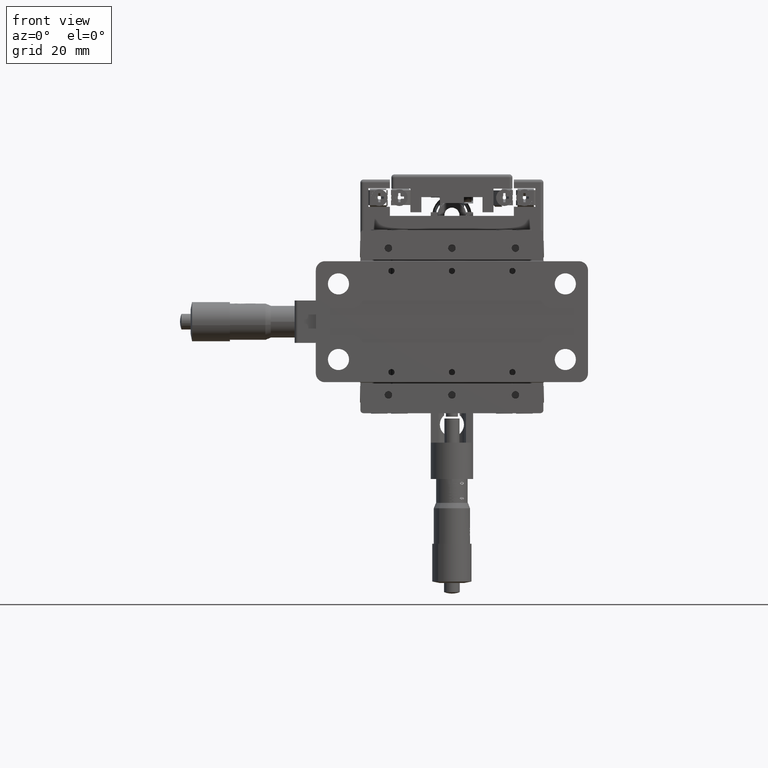
[diagram: clean part render]
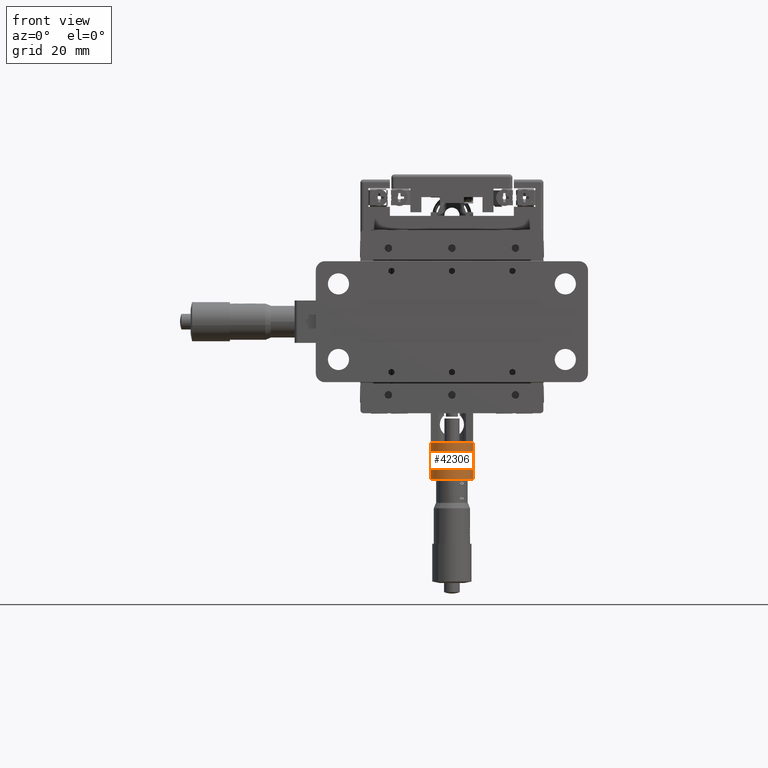
[diagram: same view with one face highlighted and labeled with its STEP entity id]
A machine part, front view. The second image highlights one B-rep face of the part: STEP entity #42306.
In plain terms, the highlighted cylindrical surface (edge-blend (fillet) strip) has radius 7 mm, axis along (0, 0, 1).
Its self-contained STEP definition (entity closure, byte-faithful):
#6 = VERTEX_POINT ( 'NONE', #25283 ) ;
#3027 = DIRECTION ( 'NONE',  ( 1.058181320345852200E-014, 3.944304526105059000E-031, 1.000000000000000000 ) ) ;
#3323 = DIRECTION ( 'NONE',  ( -1.000000000000000000, 0.0000000000000000000, 1.090397613471135800E-014 ) ) ;
#7791 = VERTEX_POINT ( 'NONE', #55955 ) ;
#9155 = CARTESIAN_POINT ( 'NONE',  ( -5.504021574391465400E-013, 11.79999999999989900, -51.99999999999808900 ) ) ;
#12217 = CYLINDRICAL_SURFACE ( 'NONE', #78967, 7.000000000000000000 ) ;
#13387 = LINE ( 'NONE', #70168, #65817 ) ;
#14746 = VERTEX_POINT ( 'NONE', #76812 ) ;
#16015 = DIRECTION ( 'NONE',  ( 1.000000000000000000, 0.0000000000000000000, -1.090397613471135800E-014 ) ) ;
#19046 = AXIS2_PLACEMENT_3D ( 'NONE', #71416, #30445, #78300 ) ;
#20719 = FACE_OUTER_BOUND ( 'NONE', #70645, .T. ) ;
#21346 = CARTESIAN_POINT ( 'NONE',  ( 6.999999999999450200, 11.79999999999989900, -51.99999999999816000 ) ) ;
#23629 = VECTOR ( 'NONE', #25029, 1000.000000000000000 ) ;
#24718 = CARTESIAN_POINT ( 'NONE',  ( 6.999999999999450200, 11.79999999999989900, -51.99999999999816000 ) ) ;
#25029 = DIRECTION ( 'NONE',  ( 1.058181320345852200E-014, 3.944304526105059000E-031, 1.000000000000000000 ) ) ;
#25283 = CARTESIAN_POINT ( 'NONE',  ( 6.999999999999578100, 11.79999999999989400, -39.99999999999816000 ) ) ;
#28270 = ORIENTED_EDGE ( 'NONE', *, *, #48410, .T. ) ;
#30445 = DIRECTION ( 'NONE',  ( 1.058181320345852200E-014, 3.944304526105059000E-031, 1.000000000000000000 ) ) ;
#42306 = ADVANCED_FACE ( 'NONE', ( #20719 ), #12217, .T. ) ;
#43599 = ORIENTED_EDGE ( 'NONE', *, *, #79466, .F. ) ;
#45115 = CIRCLE ( 'NONE', #55215, 7.000000000000000000 ) ;
#48410 = EDGE_CURVE ( 'NONE', #72337, #6, #60037, .T. ) ;
#49520 = DIRECTION ( 'NONE',  ( 1.058181320345852200E-014, 3.944304526105059000E-031, 1.000000000000000000 ) ) ;
#49852 = CIRCLE ( 'NONE', #19046, 7.000000000000000000 ) ;
#51177 = ORIENTED_EDGE ( 'NONE', *, *, #86701, .F. ) ;
#55215 = AXIS2_PLACEMENT_3D ( 'NONE', #9155, #56980, #16015 ) ;
#55955 = CARTESIAN_POINT ( 'NONE',  ( -7.000000000000421900, 11.79999999999989400, -39.99999999999801000 ) ) ;
#56980 = DIRECTION ( 'NONE',  ( -1.058181320345852200E-014, -3.944304526105059000E-031, -1.000000000000000000 ) ) ;
#57726 = CARTESIAN_POINT ( 'NONE',  ( -5.504021574391465400E-013, 11.79999999999989900, -51.99999999999808900 ) ) ;
#60037 = LINE ( 'NONE', #24718, #23629 ) ;
#65817 = VECTOR ( 'NONE', #49520, 1000.000000000000000 ) ;
#70168 = CARTESIAN_POINT ( 'NONE',  ( -7.000000000000549800, 11.79999999999989900, -51.99999999999801000 ) ) ;
#70645 = EDGE_LOOP ( 'NONE', ( #43599, #85227, #51177, #28270 ) ) ;
#71416 = CARTESIAN_POINT ( 'NONE',  ( -4.234203989976442600E-013, 11.79999999999989900, -39.99999999999808900 ) ) ;
#72337 = VERTEX_POINT ( 'NONE', #21346 ) ;
#76812 = CARTESIAN_POINT ( 'NONE',  ( -7.000000000000549800, 11.79999999999989900, -51.99999999999801000 ) ) ;
#78300 = DIRECTION ( 'NONE',  ( -1.000000000000000000, 0.0000000000000000000, 1.090397613471135800E-014 ) ) ;
#78967 = AXIS2_PLACEMENT_3D ( 'NONE', #57726, #3027, #3323 ) ;
#79466 = EDGE_CURVE ( 'NONE', #7791, #6, #49852, .T. ) ;
#85146 = EDGE_CURVE ( 'NONE', #14746, #7791, #13387, .T. ) ;
#85227 = ORIENTED_EDGE ( 'NONE', *, *, #85146, .F. ) ;
#86701 = EDGE_CURVE ( 'NONE', #72337, #14746, #45115, .T. ) ;